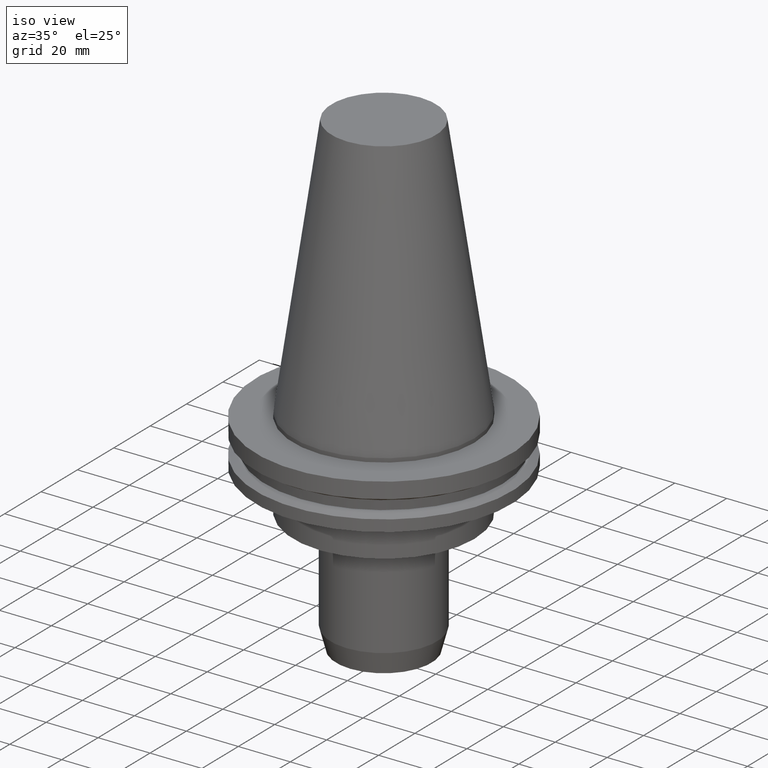
[diagram: clean part render]
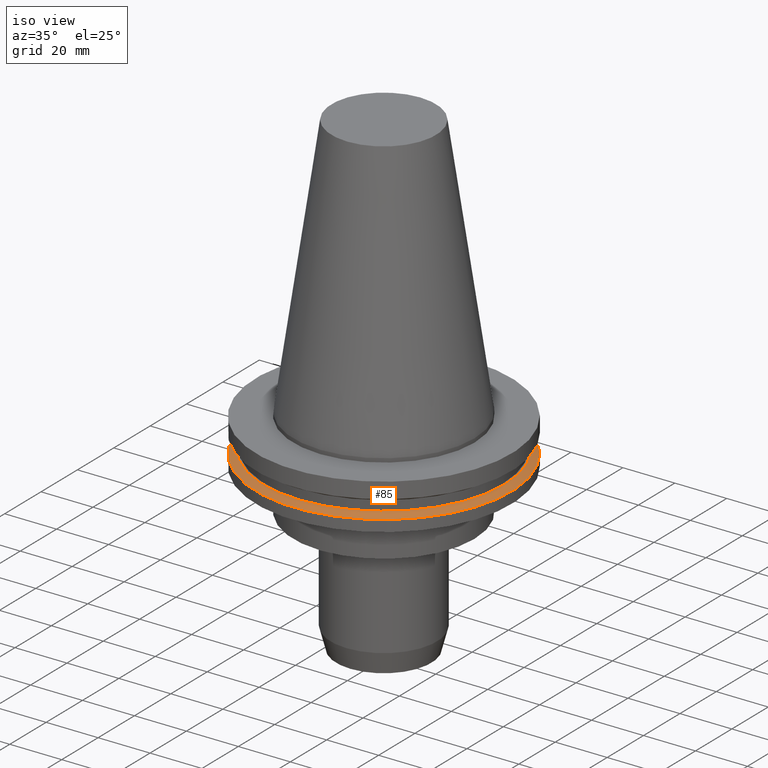
[diagram: same view with one face highlighted and labeled with its STEP entity id]
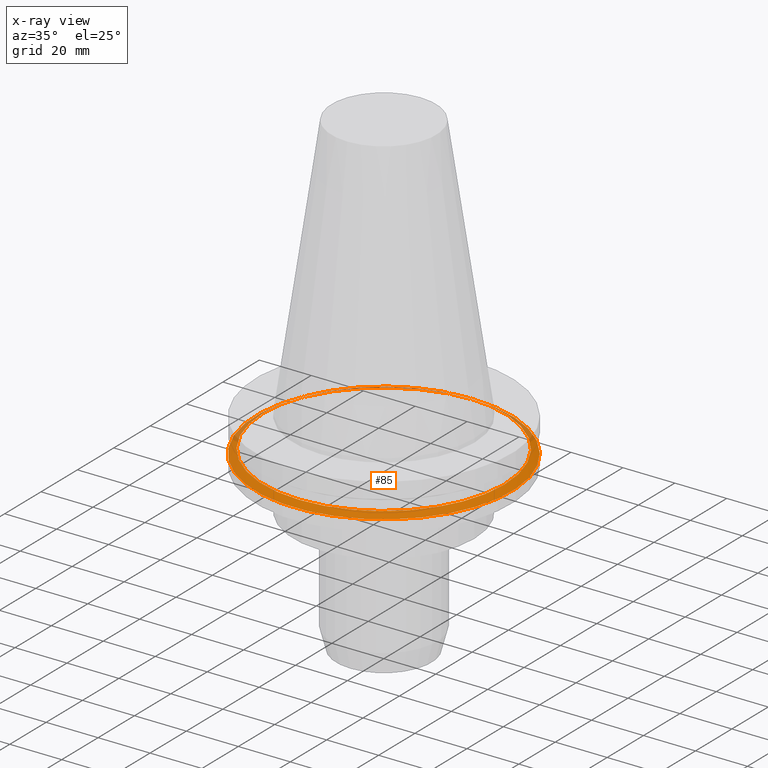
[diagram: x-ray of the same camera — body ghosted, the highlighted face saturated]
A machine part, iso view. The second image highlights one B-rep face of the part: STEP entity #85.
The next image is the same camera in x-ray: the body ghosted, the highlighted face saturated — about 11% of this face is hidden behind the body in this view.
In plain terms, the highlighted conical surface has half-angle 60 deg.
Its self-contained STEP definition (entity closure, byte-faithful):
#85=ADVANCED_FACE('Unnamed[1]',(#205,#206),#207,.T.);
#92=EDGE_CURVE('Unnamed[1]',#217,#217,#218,.T.);
#107=EDGE_CURVE('Unnamed[1]',#240,#240,#241,.T.);
#205=FACE_BOUND('',#364,.T.);
#206=FACE_BOUND('',#365,.T.);
#207=CONICAL_SURFACE('',#366,47.8225292269259,1.04719755119659);
#217=VERTEX_POINT('',#379);
#218=CIRCLE('',#380,46.4325584538518);
#240=VERTEX_POINT('',#408);
#241=CIRCLE('',#409,49.2124999999999);
#364=EDGE_LOOP('',(#534));
#365=EDGE_LOOP('',(#535));
#366=AXIS2_PLACEMENT_3D('',#536,#537,#538);
#379=CARTESIAN_POINT('',(7.98469713044071E-016,46.4325584538519,-13.04));
#380=AXIS2_PLACEMENT_3D('',#548,#549,#550);
#408=CARTESIAN_POINT('',(8.96747618675648E-016,49.2124999999999,-14.645));
#409=AXIS2_PLACEMENT_3D('',#574,#575,#576);
#534=ORIENTED_EDGE('',*,*,#107,.F.);
#535=ORIENTED_EDGE('',*,*,#92,.T.);
#536=CARTESIAN_POINT('',(8.47608665859862E-016,1.64008915848236E-014,-13.8425));
#537=DIRECTION('',(6.12323399573677E-017,7.22462196173074E-016,-1.0));
#538=DIRECTION('',(-4.90652035331864E-032,1.0,7.22462196173074E-016));
#548=CARTESIAN_POINT('',(7.98469713044074E-016,1.58211156723946E-014,-13.04));
#549=DIRECTION('',(6.12323399573677E-017,7.22462196173118E-016,-1.0));
#550=DIRECTION('',(-4.90652035331844E-032,1.0,7.22462196173118E-016));
#574=CARTESIAN_POINT('',(8.9674761867565E-016,1.69806674972525E-014,-14.645));
#575=DIRECTION('',(6.12323399573677E-017,7.22462196173164E-016,-1.0));
#576=DIRECTION('',(-4.90652035331884E-032,1.0,7.22462196173164E-016));